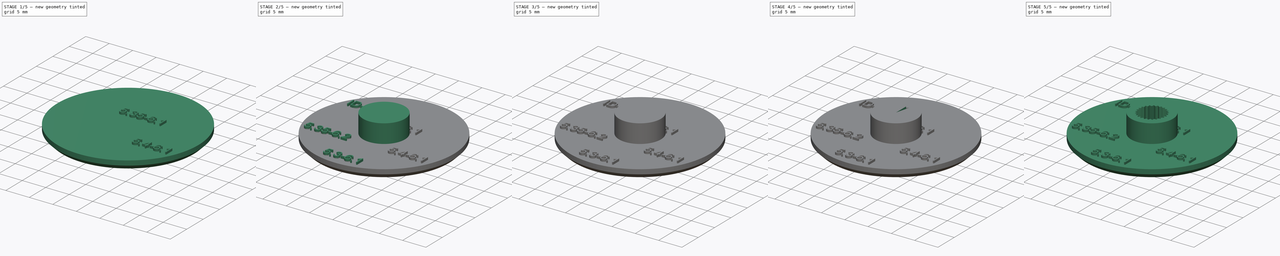
[diagram: build sequence overview — one tinted view per stage of 5, left to right]
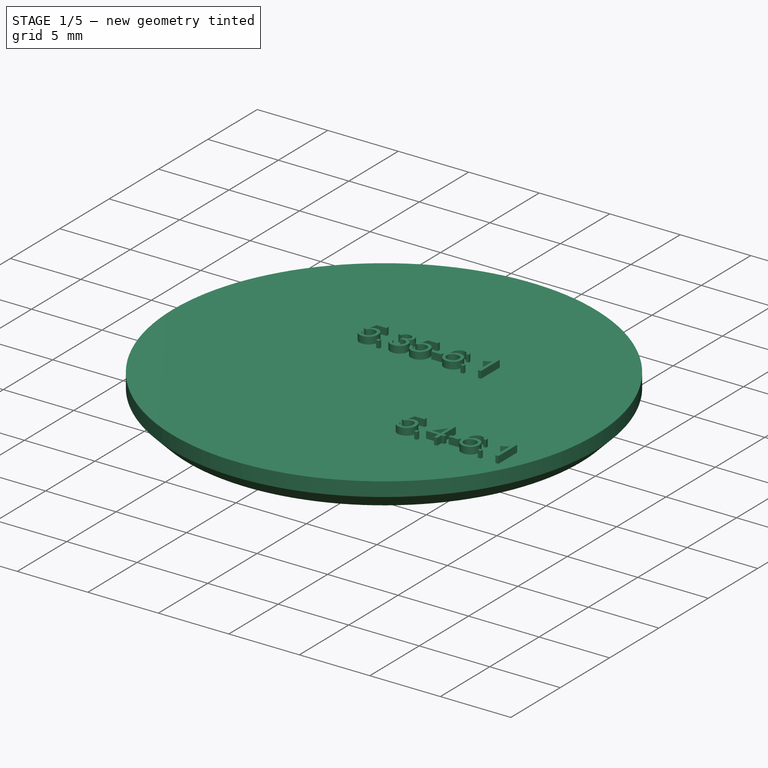
[diagram: stage 1 of 5 — iso view after this stage's code; geometry added in this stage tinted green]
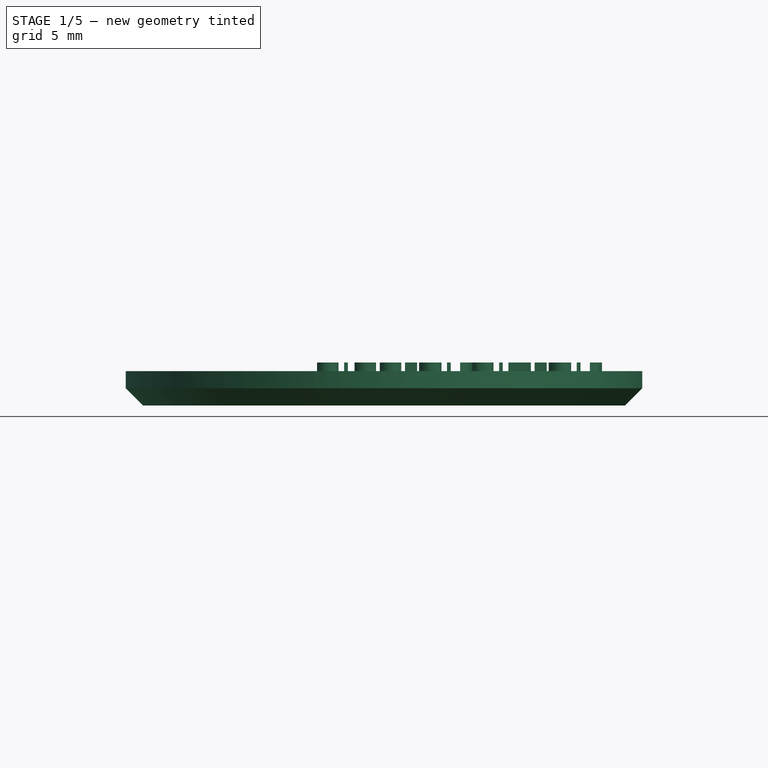
[diagram: stage 1 of 5 — front view after this stage's code; geometry added in this stage tinted green]
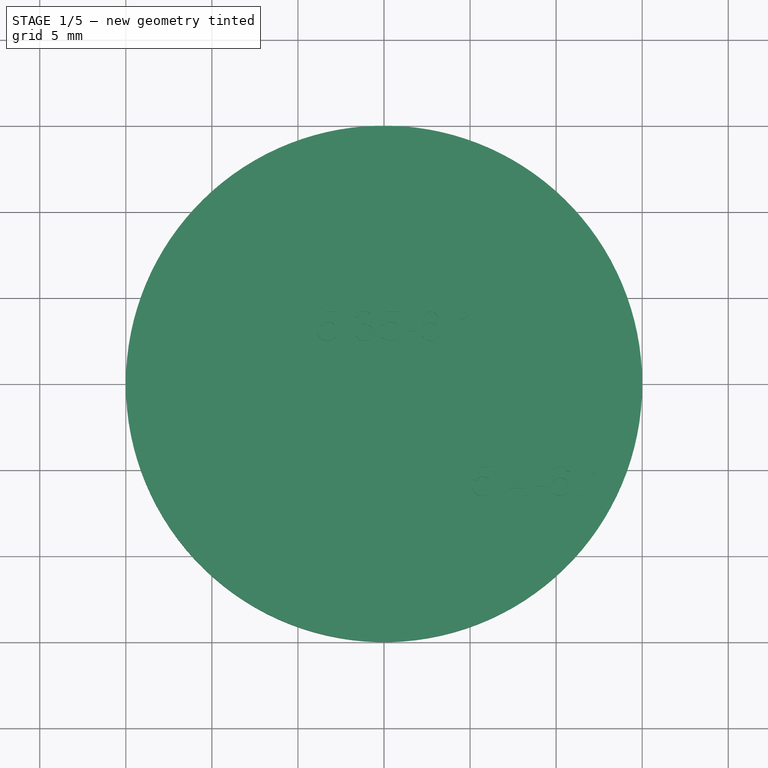
[diagram: stage 1 of 5 — top view after this stage's code; geometry added in this stage tinted green]
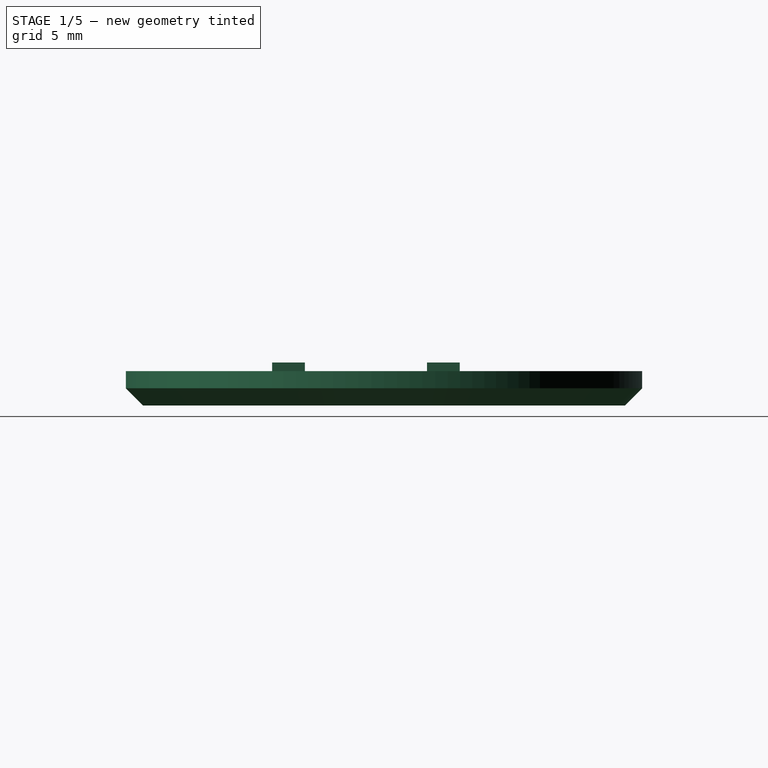
[diagram: stage 1 of 5 — right view after this stage's code; geometry added in this stage tinted green]
FCSTD DOCUMENT  (FreeCAD 0.20R29410 (Git))
Label: test_template_v3_middle
License: All rights reserved
LicenseURL: http://en.wikipedia.org/wiki/All_rights_reserved
objects: PartDesign::Pad×10, Sketcher::SketchObject×9, PartDesign::Body×5, Part::Part2DObjectPython×5, PartDesign::Pocket×4, PartDesign::PolarPattern×4, App::FeaturePython×2, Part::FeaturePython×2, PartDesign::Chamfer×1
note: 54 computed .brp shape members not serialized (recipe doc carries the construction recipe); baked Part::Feature solids carry a one-line shape summary decoded from their .brp

FEATURE [PartDesign::Body] Body001  label="5p4_ID-6p1_OD"
  Group = -> [Sketch002,Pad001,Sketch003,Pocket001,PolarPattern001]
  Origin = -> Origin001
  Placement = pos=(9,-1.07288e-06,0) rot=(0,0,1;0rad)
  Tip = -> PolarPattern001
FEATURE [App::FeaturePython] Constraints  # WARN: FeaturePython — macro-defined, semantics opaque (R4)
  _Version = 1
FEATURE [App::FeaturePython] Elements  # WARN: FeaturePython — macro-defined, semantics opaque (R4)
FEATURE [Sketcher::SketchObject] Sketch004
  FullyConstrained = true
  MapMode = 5
  Support = -> [XY_Plane002]
  sketch-geometry (1):
    g0: Circle CenterX=0 CenterY=0 CenterZ=0 NormalX=0 NormalY=0 NormalZ=1 AngleXU=0 Radius=15
  constraints (2):
    c: Coincident(g0,g-1)
    c: Diameter(g0) = 30
FEATURE [PartDesign::Pad] Pad002
  Direction = (0,0,1)
  Length = 2
  Length2 = 10
  Profile = -> Sketch004
  ReferenceAxis = -> Sketch004 [N_Axis]
  Reversed = true
  Type = 0
FEATURE [PartDesign::Chamfer] Chamfer
  Angle = 45
  Base = -> Pad002 [Edge3]
  BaseFeature = -> Pad002
  ChamferType = 0
  FlipDirection = false
  Size = 1
  Size2 = 1
  SupportTransform = false
  UseAllEdges = false
FEATURE [PartDesign::Body] Body004  label="5p7_ID-6p3_OD"
  Group = -> [Sketch007,Pad004,Sketch008,Pocket003,PolarPattern003]
  Origin = -> Origin004
  Placement = pos=(-9,1.07288e-06,0) rot=(0,0,1;0rad)
  Tip = -> PolarPattern003
FEATURE [Part::Part2DObjectPython] ShapeString  label="Str-5p35_ID-6p1_OD"  # Draft 2D object (typed FeaturePython)
  FontFile = <path>
  MakeFace = true
  Placement = pos=(-4,2.5,0) rot=(0,0,1;0rad)
  Size = 2
  String = 5.35-6.1
  Tracking = 0
FEATURE [PartDesign::Pad] Pad005  label="Text-5p35_ID-6p1_OD"
  BaseFeature = -> Chamfer
  Direction = (0,0,1)
  Length = 0.5
  Length2 = 10
  Profile = -> ShapeString
  ReferenceAxis = -> ShapeString [N_Axis]
  Type = 0
FEATURE [Part::Part2DObjectPython] ShapeString001  label="Str-5p4_ID-6p1_OD"  # Draft 2D object (typed FeaturePython)
  FontFile = <path>
  MakeFace = true
  Placement = pos=(5,-6.5,0) rot=(0,0,1;0rad)
  Size = 2
  String = 5.4-6.1
  Tracking = 0
FEATURE [Part::Part2DObjectPython] ShapeString002  label="Str-5p3_ID-6p1_OD"  # Draft 2D object (typed FeaturePython)
  FontFile = <path>
  MakeFace = true
  Placement = pos=(-4,-13.5,0) rot=(0,0,1;0rad)
  Size = 2
  String = 5.3-6.1
  Tracking = 0
FEATURE [Part::Part2DObjectPython] ShapeString003  label="Str-5p35_ID-6p2_OD"  # Draft 2D object (typed FeaturePython)
  FontFile = <path>
  MakeFace = true
  Placement = pos=(-13,-6.5,0) rot=(0,0,1;0rad)
  Size = 2
  String = 5.35-6.2
  Tracking = 0
FEATURE [PartDesign::Pad] Pad006  label="Text-5p4_ID-6p1_OD"
  BaseFeature = -> Pad005
  Direction = (0,0,1)
  Length = 0.5
  Length2 = 10
  Profile = -> ShapeString001
  ReferenceAxis = -> ShapeString001 [N_Axis]
  Type = 0
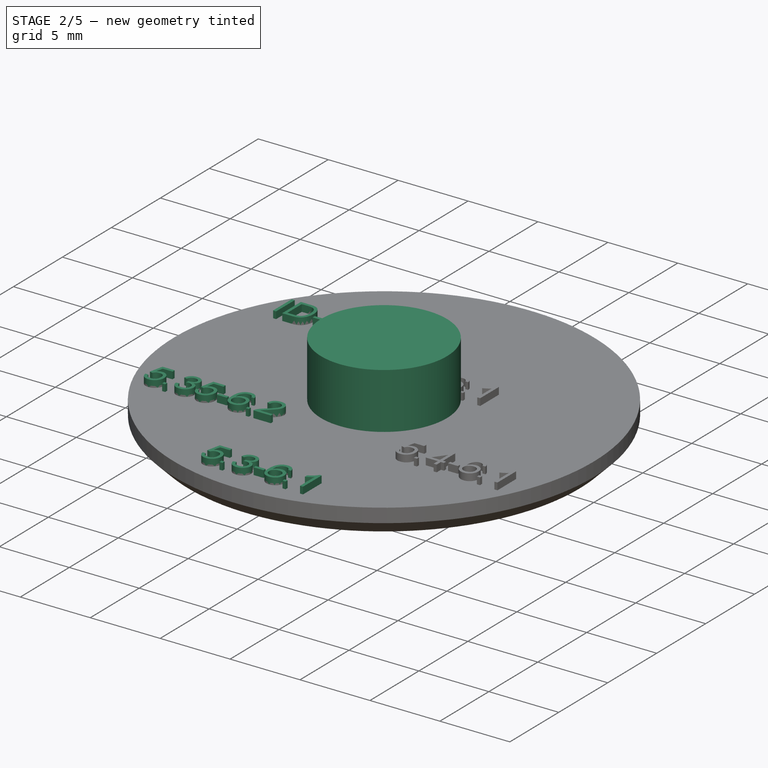
[diagram: stage 2 of 5 — iso view after this stage's code; geometry added in this stage tinted green]
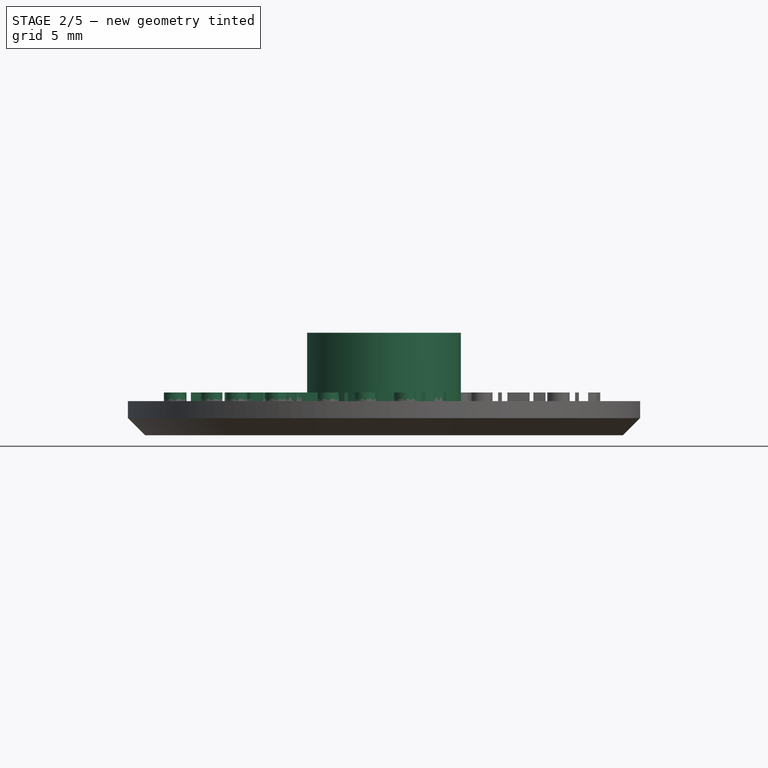
[diagram: stage 2 of 5 — front view after this stage's code; geometry added in this stage tinted green]
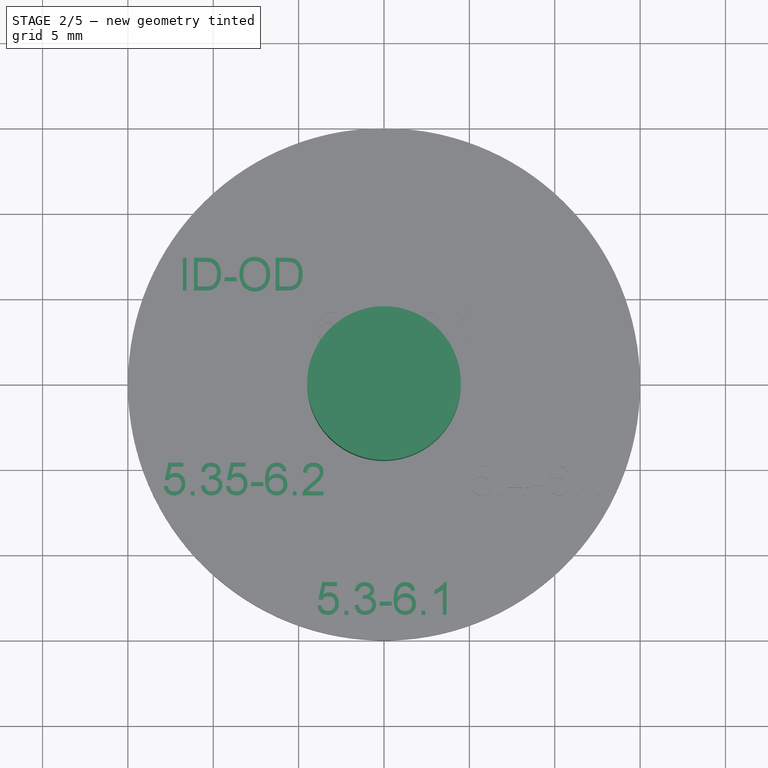
[diagram: stage 2 of 5 — top view after this stage's code; geometry added in this stage tinted green]
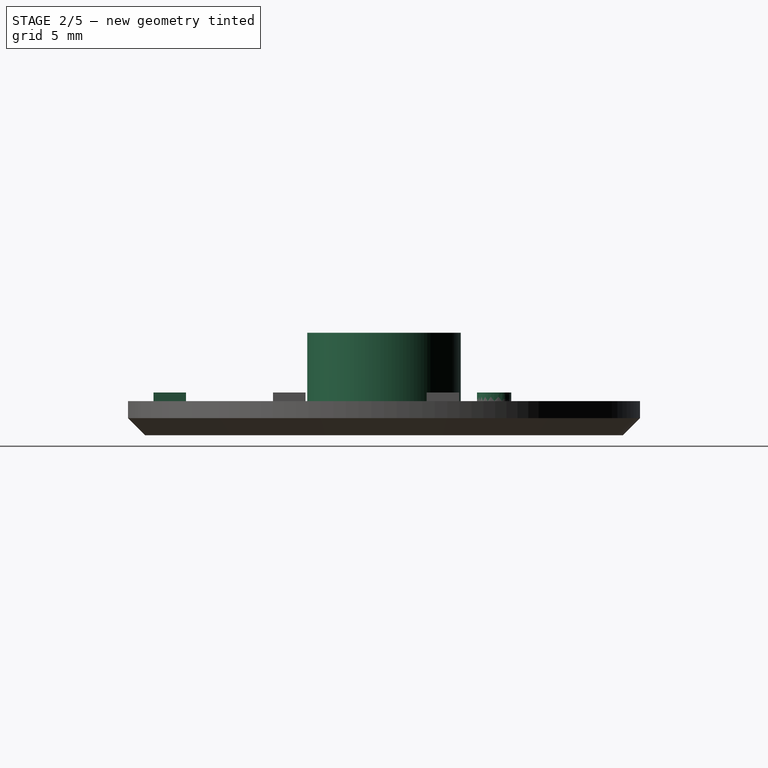
[diagram: stage 2 of 5 — right view after this stage's code; geometry added in this stage tinted green]
FEATURE [PartDesign::Body] Body003  label="5p3_ID-6p1_OD"
  Group = -> [Sketch005,Pad003,Sketch006,Pocket002,PolarPattern002]
  Origin = -> Origin003
  Placement = pos=(0,-7,0) rot=(0,0,1;0rad)
  Tip = -> PolarPattern002
FEATURE [Sketcher::SketchObject] Sketch007
  FullyConstrained = true
  MapMode = 5
  Support = -> [XY_Plane004]
  sketch-geometry (1):
    g0: Circle CenterX=0 CenterY=0 CenterZ=0 NormalX=0 NormalY=0 NormalZ=1 AngleXU=0 Radius=4.5
  constraints (2):
    c: Coincident(g0,g-1)
    c: Diameter(g0) = 9
FEATURE [PartDesign::Pad] Pad004  label="cylinder_base_Pad003"
  Direction = (0,0,1)
  Length = 4
  Length2 = 10
  Profile = -> Sketch007
  ReferenceAxis = -> Sketch007 [N_Axis]
  Type = 0
FEATURE [PartDesign::Pad] Pad007  label="Text-5p35_ID-6p2_OD"
  BaseFeature = -> Pad006
  Direction = (0,0,1)
  Length = 0.5
  Length2 = 10
  Profile = -> ShapeString003
  ReferenceAxis = -> ShapeString003 [N_Axis]
  Type = 0
FEATURE [PartDesign::Pad] Pad008  label="Text-5p6_ID-6p2_OD"
  BaseFeature = -> Pad007
  Direction = (0,0,1)
  Length = 0.5
  Length2 = 10
  Profile = -> ShapeString002
  ReferenceAxis = -> ShapeString002 [N_Axis]
  Type = 0
FEATURE [Part::Part2DObjectPython] ShapeString004  label="Str-Help"  # Draft 2D object (typed FeaturePython)
  FontFile = <path>
  MakeFace = true
  Placement = pos=(-12,5.5,0) rot=(0,0,1;0rad)
  Size = 2
  String = ID-OD
  Tracking = 0
FEATURE [PartDesign::Pad] Pad009
  BaseFeature = -> Pad008
  Direction = (0,0,1)
  Length = 0.5
  Length2 = 10
  Profile = -> ShapeString004
  ReferenceAxis = -> ShapeString004 [N_Axis]
  Type = 0
FEATURE [PartDesign::Body] Body002  label="Base_plate"
  Group = -> [Sketch004,Pad002,Chamfer,ShapeString,Pad005,ShapeString001,ShapeString002,ShapeString003,Pad006,Pad007,Pad008,ShapeString004,Pad009]
  Origin = -> Origin002
  Tip = -> Pad009
FEATURE [Part::FeaturePython] Parts  # WARN: FeaturePython — macro-defined, semantics opaque (R4)
  Group = -> [Body,Body001,Body003,Body004,Body002]
  GroupMode = 0
FEATURE [Part::FeaturePython] Assembly  # WARN: FeaturePython — macro-defined, semantics opaque (R4)
  AutoRelax = true
  BuildShape = 0
  Freeze = false
  Group = -> [Constraints,Elements,Parts]
  Verbose = false
  _SolverType = 1
  _Version = 1
note: 5 file-system paths scrubbed to <path> (originals preserved in the JSON sidecar)
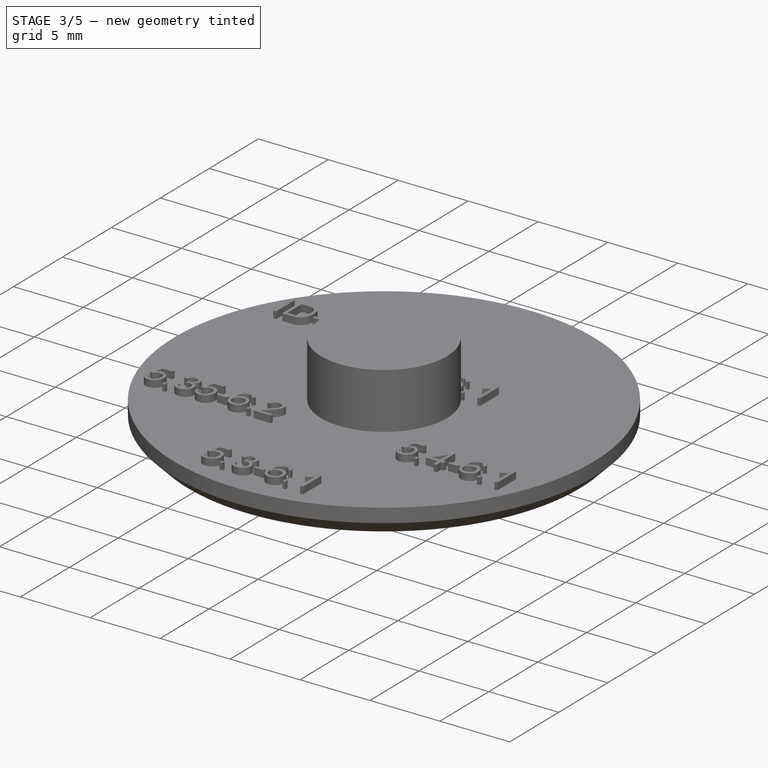
[diagram: stage 3 of 5 — iso view after this stage's code; geometry added in this stage tinted green]
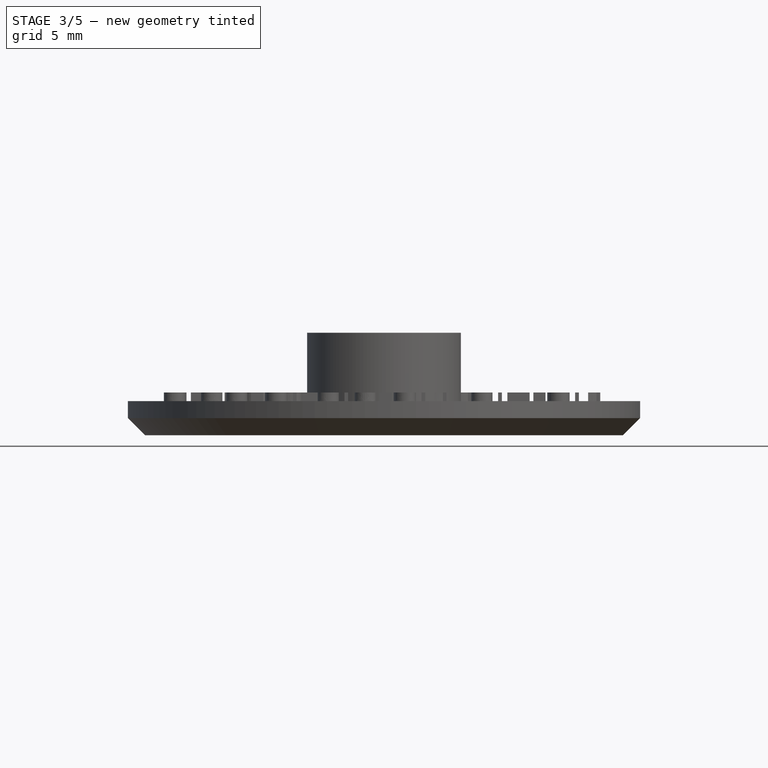
[diagram: stage 3 of 5 — front view after this stage's code; geometry added in this stage tinted green]
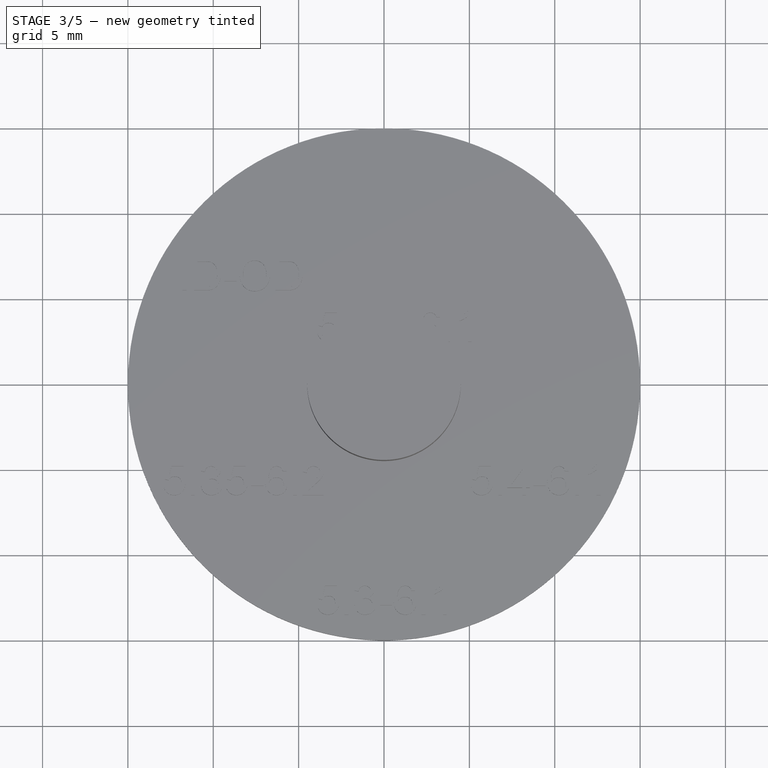
[diagram: stage 3 of 5 — top view after this stage's code; geometry added in this stage tinted green]
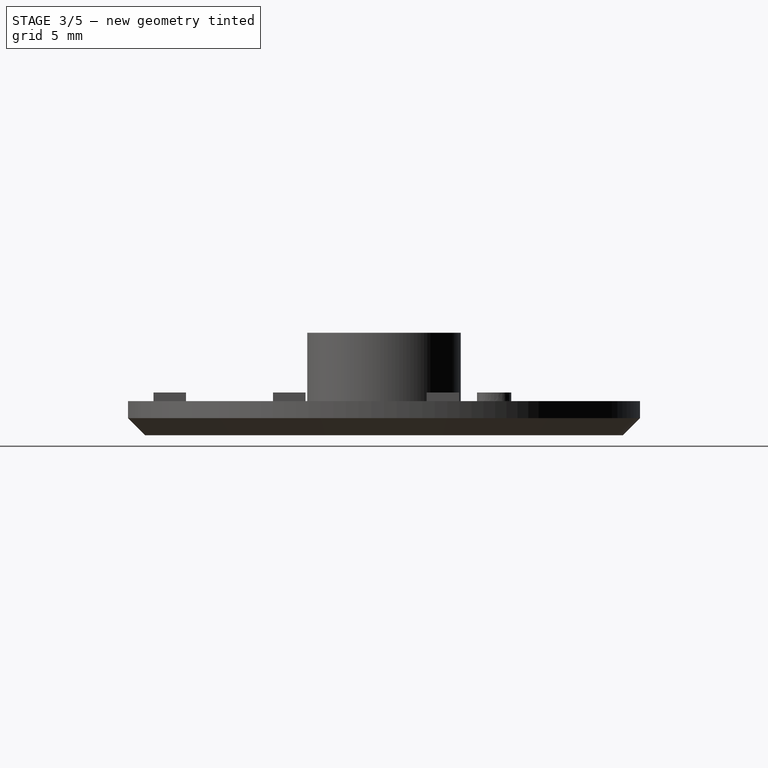
[diagram: stage 3 of 5 — right view after this stage's code; geometry added in this stage tinted green]
FEATURE [Sketcher::SketchObject] Sketch005
  FullyConstrained = true
  MapMode = 5
  Support = -> [XY_Plane003]
  sketch-geometry (1):
    g0: Circle CenterX=0 CenterY=0 CenterZ=0 NormalX=0 NormalY=0 NormalZ=1 AngleXU=0 Radius=4.5
  constraints (2):
    c: Coincident(g0,g-1)
    c: Diameter(g0) = 9
FEATURE [PartDesign::Pad] Pad003  label="cylinder_base_Pad002"
  Direction = (0,0,1)
  Length = 4
  Length2 = 10
  Profile = -> Sketch005
  ReferenceAxis = -> Sketch005 [N_Axis]
  Type = 0
FEATURE [Sketcher::SketchObject] Sketch008
  FullyConstrained = true
  MapMode = 5
  Placement = pos=(0,0,4) rot=(0,0,1;0rad)
  Support = -> [Pad004]
  sketch-geometry (10):
    g0: Circle CenterX=0 CenterY=0 CenterZ=0 NormalX=0 NormalY=0 NormalZ=1 AngleXU=0 Radius=3.1
    g1: Circle CenterX=0 CenterY=0 CenterZ=0 NormalX=0 NormalY=0 NormalZ=1 AngleXU=0 Radius=2.675
    g2: GeomPoint X=0 Y=3.1 Z=0
    g3: GeomPoint X=0.770939 Y=3.00261 Z=0
    g4: GeomPoint X=0.335266 Y=2.65391 Z=0
    g5: LineSegment StartX=0 StartY=3.1 StartZ=0 EndX=0.335266 EndY=2.65391 EndZ=0
    g6: LineSegment StartX=0.335266 StartY=2.65391 StartZ=0 EndX=0.770939 EndY=3.00261 EndZ=0
    g7: LineSegment StartX=0.770939 StartY=3.00261 StartZ=0 EndX=0 EndY=0 EndZ=0
    g8: LineSegment StartX=0.335266 StartY=2.65391 StartZ=0 EndX=0 EndY=0 EndZ=0
    g9: LineSegment StartX=0 StartY=3.1 StartZ=0 EndX=0 EndY=0 EndZ=0
  constraints (20):
    c: Coincident(g0,g-1)
    c: Diameter(g0) = 6.2  '5p82_nominal'
    c: Coincident(g1,g0)
    c: Diameter(g1) = 5.35  '5p27nominal'
    c: PointOnObject(g2,g0)
    c: PointOnObject(g3,g0)
    c: PointOnObject(g4,g1)
    c: Coincident(g5,g2)
    c: Coincident(g5,g4)
    c: Coincident(g6,g4)
    c: Coincident(g6,g3)
    c: Coincident(g7,g3)
    c: Coincident(g7,g0)
    c: Angle(g7,g-2) = 0.251327
    c: Coincident(g8,g4)
    c: Coincident(g8,g7)
    c: Angle(g8,g-2) = 0.125664
    c: Coincident(g9,g2)
    c: Coincident(g9,g7)
    c: Vertical(g9)
FEATURE [PartDesign::Pocket] Pocket003  label="spline_pocket003"
  BaseFeature = -> Pad004
  Direction = (0,0,-1)
  Length = 4
  Length2 = 5
  Profile = -> Sketch008
  ReferenceAxis = -> Sketch008 [N_Axis]
  Type = 0
FEATURE [PartDesign::PolarPattern] PolarPattern003  label="spline_PolarPattern003"
  Angle = 360
  Axis = -> Sketch008 [N_Axis]
  BaseFeature = -> Pocket003
  Occurrences = 25
  Originals = -> [Pocket003]
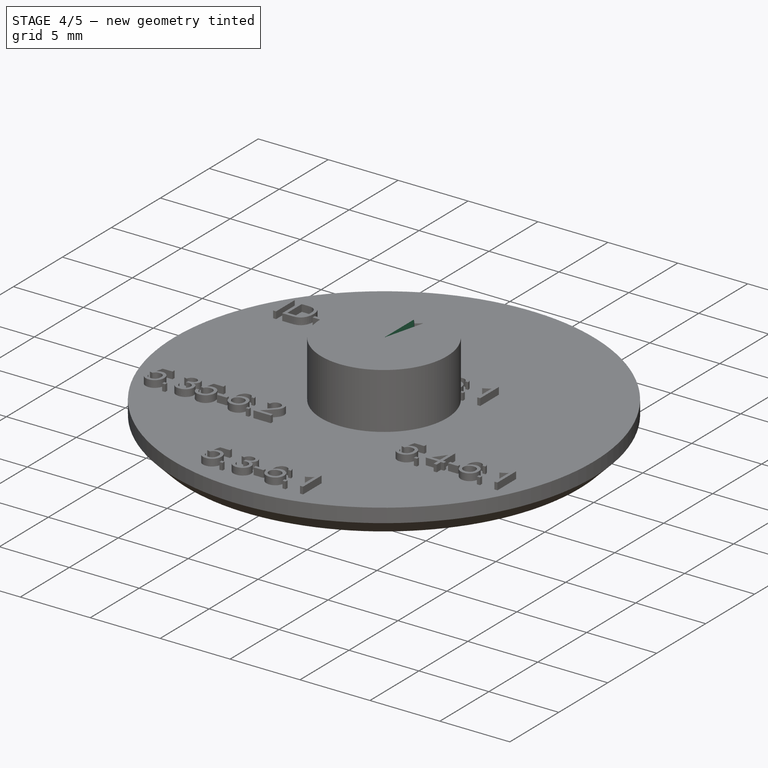
[diagram: stage 4 of 5 — iso view after this stage's code; geometry added in this stage tinted green]
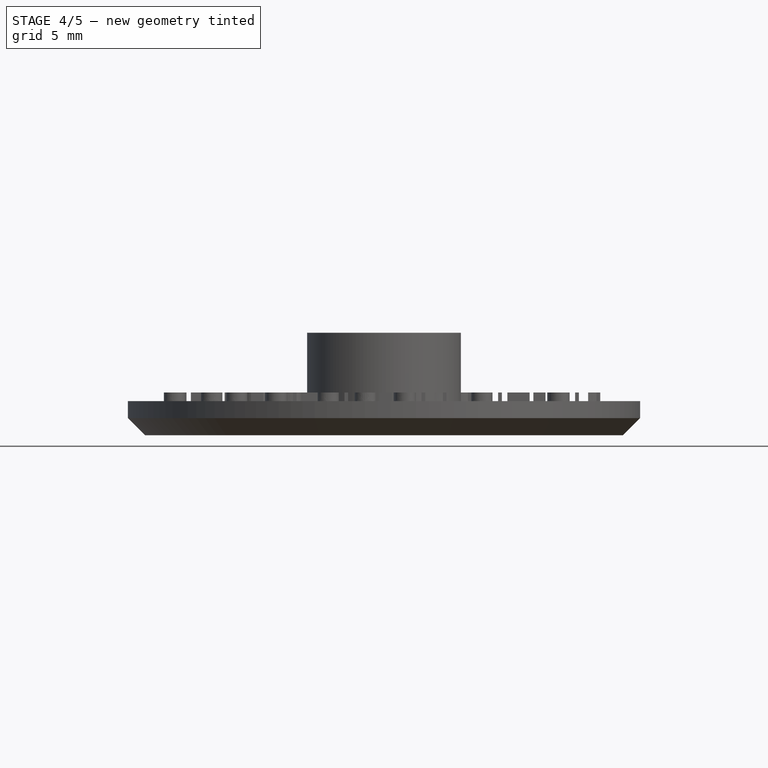
[diagram: stage 4 of 5 — front view after this stage's code; geometry added in this stage tinted green]
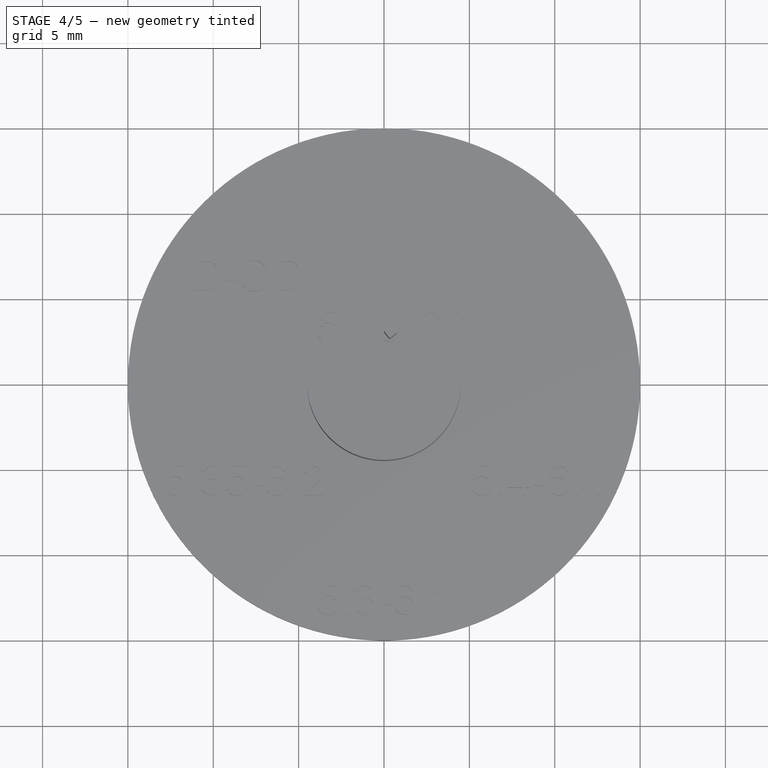
[diagram: stage 4 of 5 — top view after this stage's code; geometry added in this stage tinted green]
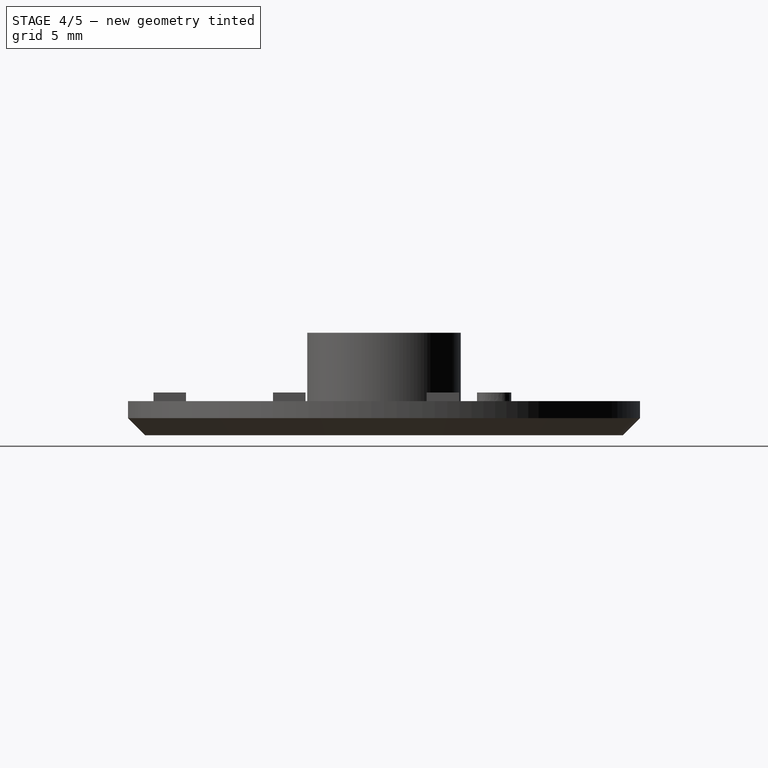
[diagram: stage 4 of 5 — right view after this stage's code; geometry added in this stage tinted green]
FEATURE [PartDesign::Body] Body  label="5p35_ID-6p1_OD"
  Group = -> [Sketch,Pad,Sketch001,Pocket,PolarPattern]
  Origin = -> Origin
  Placement = pos=(0,9,0) rot=(0,0,1;0rad)
  Tip = -> PolarPattern
FEATURE [Sketcher::SketchObject] Sketch002
  FullyConstrained = true
  MapMode = 5
  Support = -> [XY_Plane001]
  sketch-geometry (1):
    g0: Circle CenterX=0 CenterY=0 CenterZ=0 NormalX=0 NormalY=0 NormalZ=1 AngleXU=0 Radius=4.5
  constraints (2):
    c: Coincident(g0,g-1)
    c: Diameter(g0) = 9
FEATURE [PartDesign::Pad] Pad001  label="cylinder_base_Pad001"
  Direction = (0,0,1)
  Length = 4
  Length2 = 10
  Profile = -> Sketch002
  ReferenceAxis = -> Sketch002 [N_Axis]
  Type = 0
FEATURE [Sketcher::SketchObject] Sketch003
  FullyConstrained = true
  MapMode = 5
  Placement = pos=(0,0,4) rot=(0,0,1;0rad)
  Support = -> [Pad001]
  sketch-geometry (10):
    g0: Circle CenterX=0 CenterY=0 CenterZ=0 NormalX=0 NormalY=0 NormalZ=1 AngleXU=0 Radius=3.05
    g1: Circle CenterX=0 CenterY=0 CenterZ=0 NormalX=0 NormalY=0 NormalZ=1 AngleXU=0 Radius=2.7
    g2: GeomPoint X=0 Y=3.05 Z=0
    g3: GeomPoint X=0.758504 Y=2.95418 Z=0
    g4: GeomPoint X=0.3384 Y=2.67871 Z=0
    g5: LineSegment StartX=0 StartY=3.05 StartZ=0 EndX=0.3384 EndY=2.67871 EndZ=0
    g6: LineSegment StartX=0.3384 StartY=2.67871 StartZ=0 EndX=0.758504 EndY=2.95418 EndZ=0
    g7: LineSegment StartX=0.758504 StartY=2.95418 StartZ=0 EndX=0 EndY=0 EndZ=0
    g8: LineSegment StartX=0.3384 StartY=2.67871 StartZ=0 EndX=0 EndY=0 EndZ=0
    g9: LineSegment StartX=0 StartY=3.05 StartZ=0 EndX=0 EndY=0 EndZ=0
  constraints (20):
    c: Coincident(g0,g-1)
    c: Diameter(g0) = 6.1  '5p82_nominal'
    c: Coincident(g1,g0)
    c: Diameter(g1) = 5.4  '5p27nominal'
    c: PointOnObject(g2,g0)
    c: PointOnObject(g3,g0)
    c: PointOnObject(g4,g1)
    c: Coincident(g5,g2)
    c: Coincident(g5,g4)
    c: Coincident(g6,g4)
    c: Coincident(g6,g3)
    c: Coincident(g7,g3)
    c: Coincident(g7,g0)
    c: Angle(g7,g-2) = 0.251327
    c: Coincident(g8,g4)
    c: Coincident(g8,g7)
    c: Angle(g8,g-2) = 0.125664
    c: Coincident(g9,g2)
    c: Coincident(g9,g7)
    c: Vertical(g9)
FEATURE [PartDesign::Pocket] Pocket001  label="spline_pocket001"
  BaseFeature = -> Pad001
  Direction = (0,0,-1)
  Length = 4
  Length2 = 5
  Profile = -> Sketch003
  ReferenceAxis = -> Sketch003 [N_Axis]
  Type = 0
FEATURE [Sketcher::SketchObject] Sketch006
  FullyConstrained = true
  MapMode = 5
  Placement = pos=(0,0,4) rot=(0,0,1;0rad)
  Support = -> [Pad003]
  sketch-geometry (10):
    g0: Circle CenterX=0 CenterY=0 CenterZ=0 NormalX=0 NormalY=0 NormalZ=1 AngleXU=0 Radius=3.05
    g1: Circle CenterX=0 CenterY=0 CenterZ=0 NormalX=0 NormalY=0 NormalZ=1 AngleXU=0 Radius=2.65
    g2: GeomPoint X=0 Y=3.05 Z=0
    g3: GeomPoint X=0.758504 Y=2.95418 Z=0
    g4: GeomPoint X=0.332133 Y=2.6291 Z=0
    g5: LineSegment StartX=0 StartY=3.05 StartZ=0 EndX=0.332133 EndY=2.6291 EndZ=0
    g6: LineSegment StartX=0.332133 StartY=2.6291 StartZ=0 EndX=0.758504 EndY=2.95418 EndZ=0
    g7: LineSegment StartX=0.758504 StartY=2.95418 StartZ=0 EndX=0 EndY=0 EndZ=0
    g8: LineSegment StartX=0.332133 StartY=2.6291 StartZ=0 EndX=0 EndY=0 EndZ=0
    g9: LineSegment StartX=0 StartY=3.05 StartZ=0 EndX=0 EndY=0 EndZ=0
  constraints (20):
    c: Coincident(g0,g-1)
    c: Diameter(g0) = 6.1  '5p82_nominal'
    c: Coincident(g1,g0)
    c: Diameter(g1) = 5.3  '5p27nominal'
    c: PointOnObject(g2,g0)
    c: PointOnObject(g3,g0)
    c: PointOnObject(g4,g1)
    c: Coincident(g5,g2)
    c: Coincident(g5,g4)
    c: Coincident(g6,g4)
    c: Coincident(g6,g3)
    c: Coincident(g7,g3)
    c: Coincident(g7,g0)
    c: Angle(g7,g-2) = 0.251327
    c: Coincident(g8,g4)
    c: Coincident(g8,g7)
    c: Angle(g8,g-2) = 0.125664
    c: Coincident(g9,g2)
    c: Coincident(g9,g7)
    c: Vertical(g9)
FEATURE [PartDesign::Pocket] Pocket002  label="spline_pocket002"
  BaseFeature = -> Pad003
  Direction = (0,0,-1)
  Length = 4
  Length2 = 5
  Profile = -> Sketch006
  ReferenceAxis = -> Sketch006 [N_Axis]
  Type = 0
FEATURE [PartDesign::PolarPattern] PolarPattern002  label="spline_PolarPattern002"
  Angle = 360
  Axis = -> Sketch006 [N_Axis]
  BaseFeature = -> Pocket002
  Occurrences = 25
  Originals = -> [Pocket002]
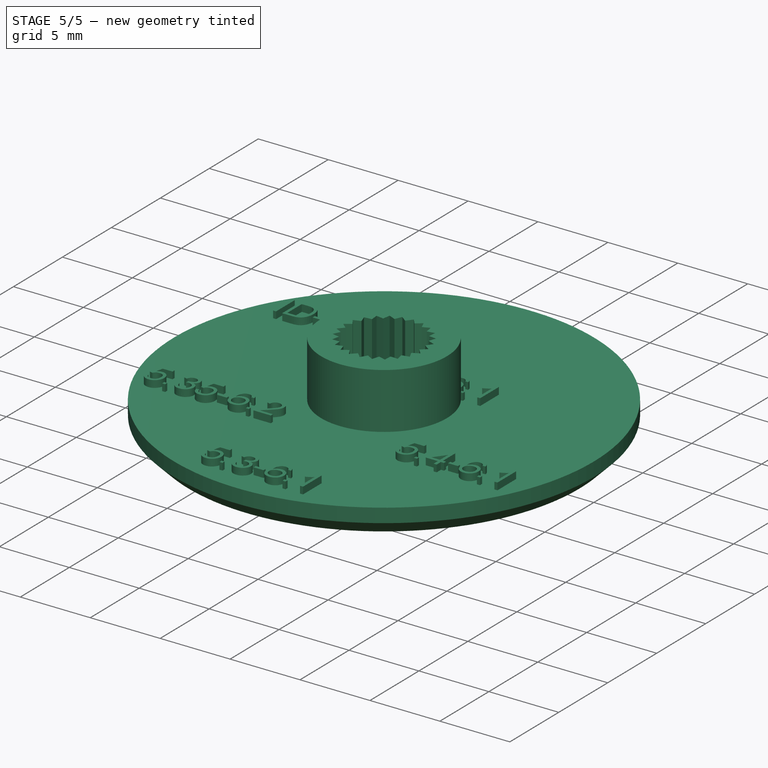
[diagram: stage 5 of 5 — iso view after this stage's code; geometry added in this stage tinted green]
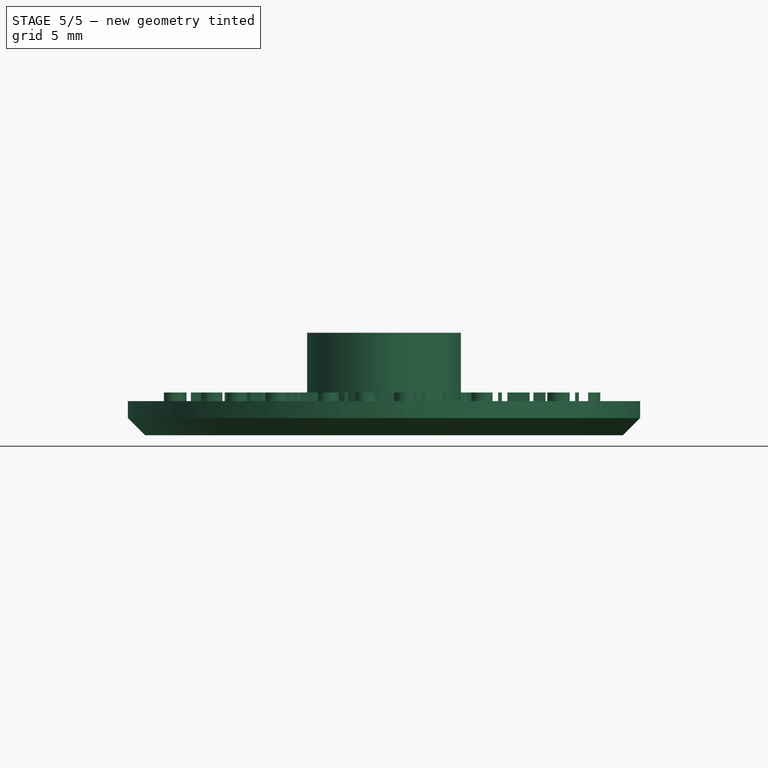
[diagram: stage 5 of 5 — front view after this stage's code; geometry added in this stage tinted green]
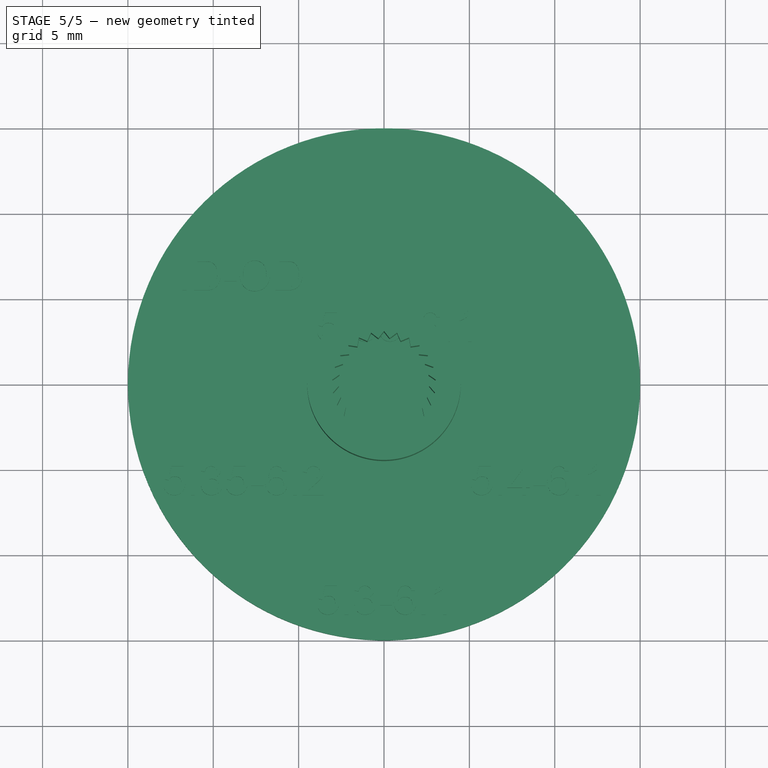
[diagram: stage 5 of 5 — top view after this stage's code; geometry added in this stage tinted green]
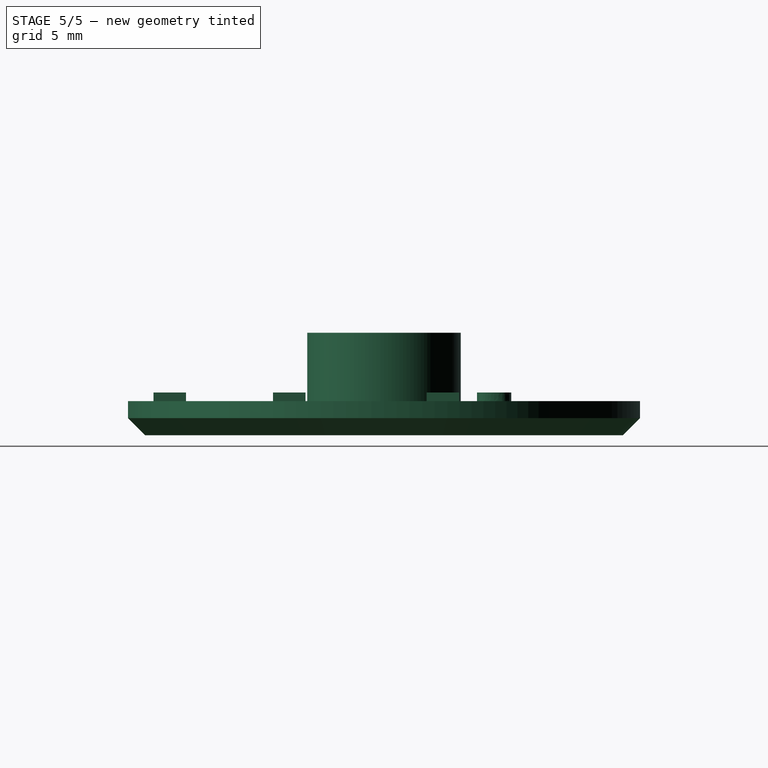
[diagram: stage 5 of 5 — right view after this stage's code; geometry added in this stage tinted green]
FEATURE [Sketcher::SketchObject] Sketch
  FullyConstrained = true
  MapMode = 5
  Support = -> [XY_Plane]
  sketch-geometry (1):
    g0: Circle CenterX=0 CenterY=0 CenterZ=0 NormalX=0 NormalY=0 NormalZ=1 AngleXU=0 Radius=4.5
  constraints (2):
    c: Coincident(g0,g-1)
    c: Diameter(g0) = 9
FEATURE [PartDesign::Pad] Pad  label="cylinder_base_Pad"
  Direction = (0,0,1)
  Length = 4
  Length2 = 10
  Profile = -> Sketch
  ReferenceAxis = -> Sketch [N_Axis]
  Type = 0
FEATURE [Sketcher::SketchObject] Sketch001
  FullyConstrained = true
  MapMode = 5
  Placement = pos=(0,0,4) rot=(0,0,1;0rad)
  Support = -> [Pad]
  sketch-geometry (10):
    g0: Circle CenterX=-1e-16 CenterY=0 CenterZ=0 NormalX=0 NormalY=0 NormalZ=1 AngleXU=0 Radius=3.05
    g1: Circle CenterX=-1e-16 CenterY=0 CenterZ=0 NormalX=0 NormalY=0 NormalZ=1 AngleXU=0 Radius=2.675
    g2: GeomPoint X=-1e-16 Y=3.05 Z=0
    g3: GeomPoint X=0.758504 Y=2.95418 Z=0
    g4: GeomPoint X=0.335266 Y=2.65391 Z=0
    g5: LineSegment StartX=-1e-16 StartY=3.05 StartZ=0 EndX=0.335266 EndY=2.65391 EndZ=0
    g6: LineSegment StartX=0.335266 StartY=2.65391 StartZ=0 EndX=0.758504 EndY=2.95418 EndZ=0
    g7: LineSegment StartX=0.758504 StartY=2.95418 StartZ=0 EndX=0 EndY=0 EndZ=0
    g8: LineSegment StartX=0.335266 StartY=2.65391 StartZ=0 EndX=-1e-16 EndY=0 EndZ=0
    g9: LineSegment StartX=-1e-16 StartY=3.05 StartZ=0 EndX=-1e-16 EndY=0 EndZ=0
  constraints (20):
    c: Coincident(g0,g-1)
    c: Diameter(g0) = 6.1  '5p82_nominal'
    c: Coincident(g1,g0)
    c: Diameter(g1) = 5.35  '5p27nominal'
    c: PointOnObject(g2,g0)
    c: PointOnObject(g3,g0)
    c: PointOnObject(g4,g1)
    c: Coincident(g5,g2)
    c: Coincident(g5,g4)
    c: Coincident(g6,g4)
    c: Coincident(g6,g3)
    c: Coincident(g7,g3)
    c: Coincident(g7,g0)
    c: Angle(g7,g-2) = 0.251327
    c: Coincident(g8,g4)
    c: Coincident(g8,g7)
    c: Angle(g8,g-2) = 0.125664
    c: Coincident(g9,g2)
    c: Coincident(g9,g7)
    c: Vertical(g9)
FEATURE [PartDesign::Pocket] Pocket  label="spline_pocket"
  BaseFeature = -> Pad
  Direction = (0,0,-1)
  Length = 4
  Length2 = 5
  Profile = -> Sketch001
  ReferenceAxis = -> Sketch001 [N_Axis]
  Type = 0
FEATURE [PartDesign::PolarPattern] PolarPattern  label="spline_PolarPattern"
  Angle = 360
  Axis = -> Sketch001 [N_Axis]
  BaseFeature = -> Pocket
  Occurrences = 25
  Originals = -> [Pocket]
FEATURE [PartDesign::PolarPattern] PolarPattern001  label="spline_PolarPattern001"
  Angle = 360
  Axis = -> Sketch003 [N_Axis]
  BaseFeature = -> Pocket001
  Occurrences = 25
  Originals = -> [Pocket001]
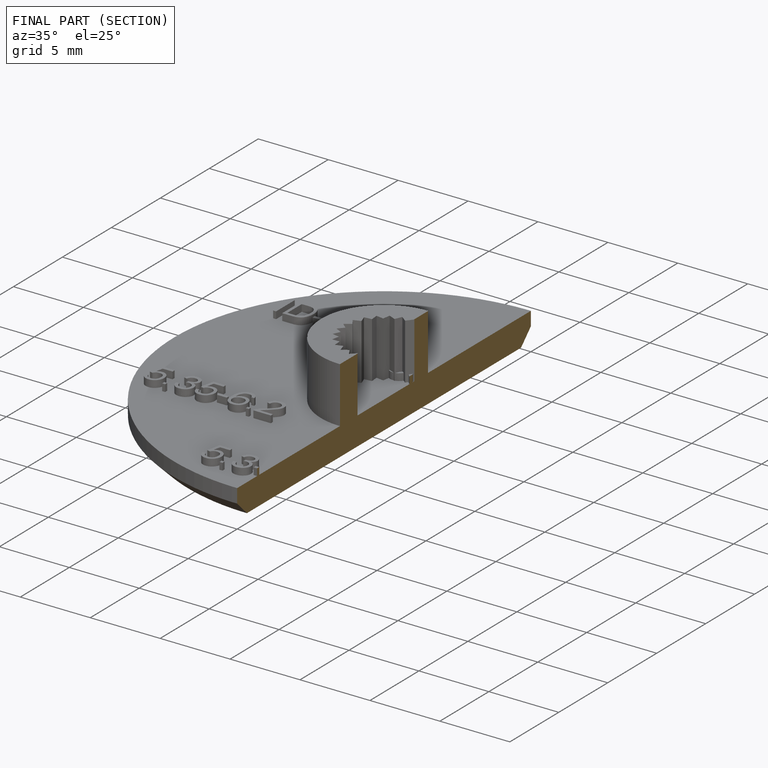
[diagram: finished part — half-section view (interior)]
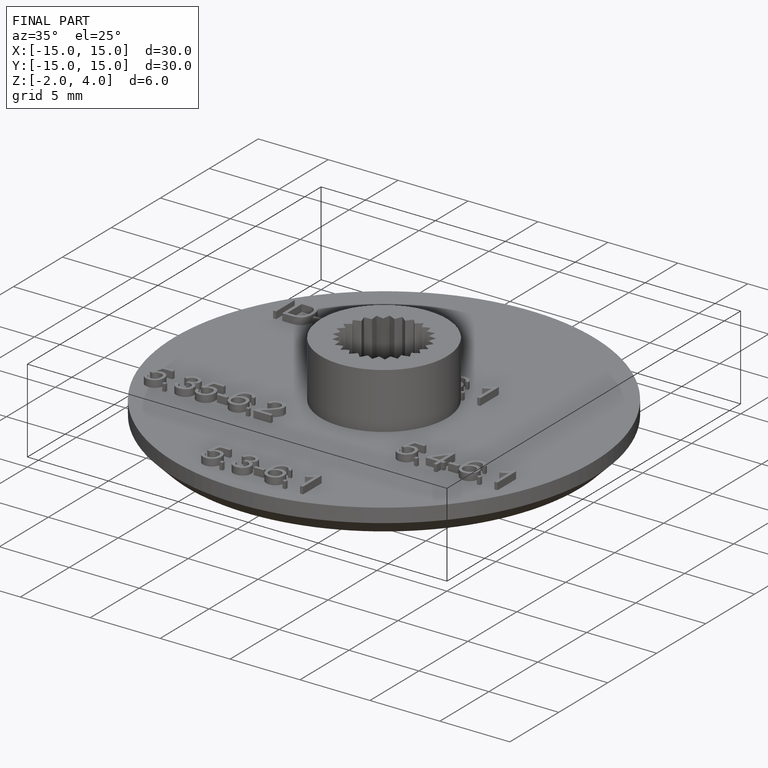
[diagram: finished part — iso view with bounding-box wireframe]
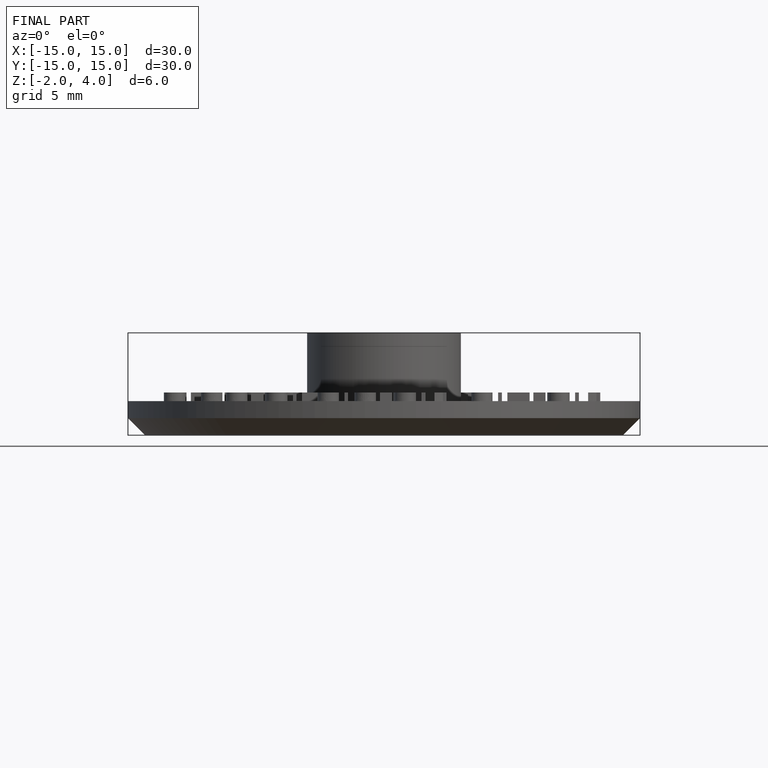
[diagram: finished part — front view with bounding-box wireframe]
